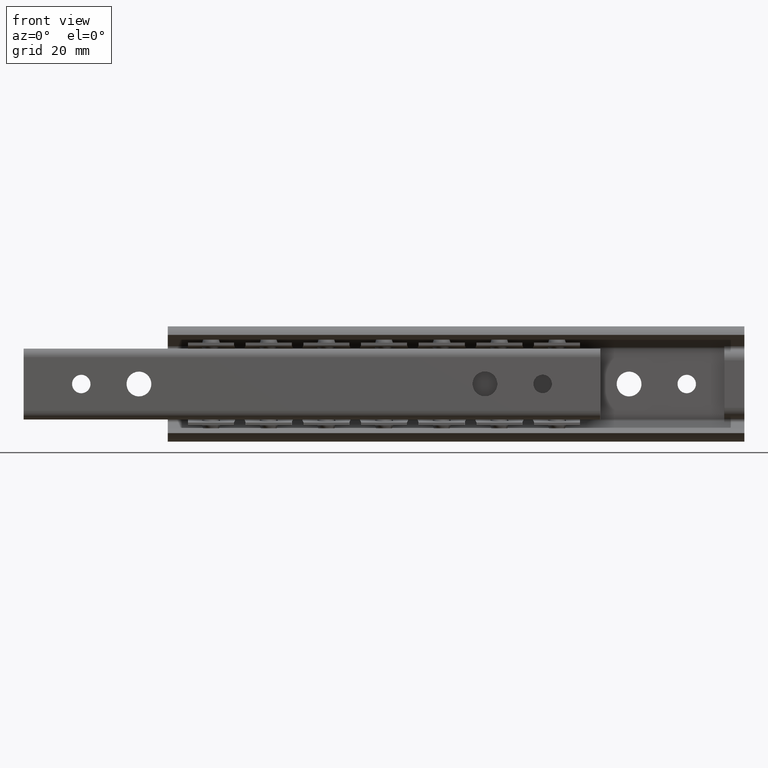
[diagram: clean part render]
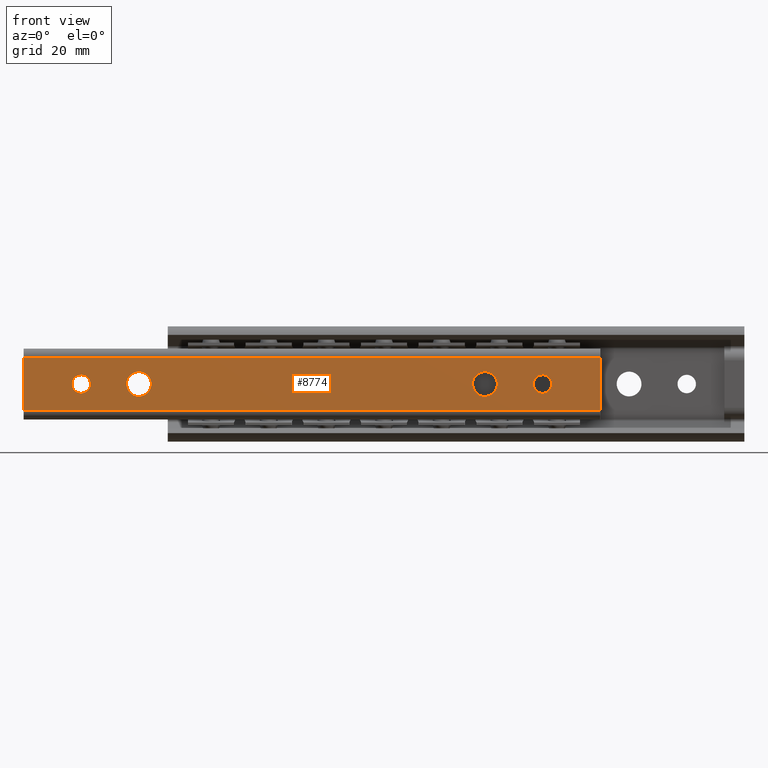
[diagram: same view with one face highlighted and labeled with its STEP entity id]
A machine part, front view. The second image highlights one B-rep face of the part: STEP entity #8774.
In plain terms, the highlighted face is a freeform B-spline surface patch.
Its self-contained STEP definition (entity closure, byte-faithful):
#7515=CARTESIAN_POINT('',(-16.588815242049389,-8.0,0.188854776565361));
#7516=VERTEX_POINT('',#7515);
#7522=CARTESIAN_POINT('',(-15.0,-8.0,-1.600000000000000));
#7523=VERTEX_POINT('',#7522);
#7524=CARTESIAN_POINT('',(-16.588815242049385,-8.000000000000002,0.188854776565361));
#7525=CARTESIAN_POINT('',(-16.599999999999998,-8.0,0.094758592569387));
#7526=CARTESIAN_POINT('',(-16.600000000000001,-8.0,0.0));
#7527=CARTESIAN_POINT('',(-16.600000000000001,-8.0,-1.600000000000000));
#7528=CARTESIAN_POINT('',(-15.0,-8.0,-1.600000000000000));
#7536=(BOUNDED_CURVE()B_SPLINE_CURVE(2,(#7524,#7525,#7526,#7527,#7528),.UNSPECIFIED.,.F.,.U.)B_SPLINE_CURVE_WITH_KNOTS((3,2,3),(0.229562473278534,0.250000000000000,0.500000000000000),.UNSPECIFIED.)CURVE()GEOMETRIC_REPRESENTATION_ITEM()RATIONAL_B_SPLINE_CURVE((0.956026753723140,0.976055948055855,1.0,0.707106781186548,1.0))REPRESENTATION_ITEM(''));
#7537=EDGE_CURVE('',#7516,#7523,#7536,.T.);
#7539=CARTESIAN_POINT('',(-13.402984322553239,-8.0,-0.097677663717326));
#7540=VERTEX_POINT('',#7539);
#7541=CARTESIAN_POINT('',(-15.0,-8.0,-1.600000000000000));
#7542=CARTESIAN_POINT('',(-13.494870293822499,-8.0,-1.600000000000001));
#7543=CARTESIAN_POINT('',(-13.402984322553237,-8.0,-0.097677663717326));
#7551=(BOUNDED_CURVE()B_SPLINE_CURVE(2,(#7541,#7542,#7543),.UNSPECIFIED.,.F.,.U.)B_SPLINE_CURVE_WITH_KNOTS((3,3),(0.500000000000000,0.739332962142234),.UNSPECIFIED.)CURVE()GEOMETRIC_REPRESENTATION_ITEM()RATIONAL_B_SPLINE_CURVE((1.0,0.719603993400012,0.976072041459451))REPRESENTATION_ITEM(''));
#7552=EDGE_CURVE('',#7523,#7540,#7551,.T.);
#7626=CARTESIAN_POINT('',(-15.0,-8.0,1.600000000000000));
#7627=VERTEX_POINT('',#7626);
#7628=CARTESIAN_POINT('',(-13.402984322553237,-8.0,-0.097677663717326));
#7629=CARTESIAN_POINT('',(-13.400000000000002,-8.0,-0.048884421740591));
#7630=CARTESIAN_POINT('',(-13.400000000000000,-8.0,0.0));
#7631=CARTESIAN_POINT('',(-13.399999999999999,-8.0,1.600000000000000));
#7632=CARTESIAN_POINT('',(-15.0,-8.0,1.600000000000000));
#7640=(BOUNDED_CURVE()B_SPLINE_CURVE(2,(#7628,#7629,#7630,#7631,#7632),.UNSPECIFIED.,.F.,.U.)B_SPLINE_CURVE_WITH_KNOTS((3,2,3),(0.739332962142233,0.750000000000000,1.0),.UNSPECIFIED.)CURVE()GEOMETRIC_REPRESENTATION_ITEM()RATIONAL_B_SPLINE_CURVE((0.976072041459449,0.987502787786534,1.0,0.707106781186548,1.0))REPRESENTATION_ITEM(''));
#7641=EDGE_CURVE('',#7540,#7627,#7640,.T.);
#7643=CARTESIAN_POINT('',(-15.0,-8.0,1.600000000000000));
#7644=CARTESIAN_POINT('',(-16.421079239514395,-8.0,1.599999999999999));
#7645=CARTESIAN_POINT('',(-16.588815242049385,-8.000000000000002,0.188854776565361));
#7653=(BOUNDED_CURVE()B_SPLINE_CURVE(2,(#7643,#7644,#7645),.UNSPECIFIED.,.F.,.U.)B_SPLINE_CURVE_WITH_KNOTS((3,3),(0.0,0.229562473278534),.UNSPECIFIED.)CURVE()GEOMETRIC_REPRESENTATION_ITEM()RATIONAL_B_SPLINE_CURVE((1.0,0.731050833130692,0.956026753723140))REPRESENTATION_ITEM(''));
#7654=EDGE_CURVE('',#7627,#7516,#7653,.T.);
#7701=CARTESIAN_POINT('',(-7.134970481671571,-8.0,0.253773604598790));
#7702=VERTEX_POINT('',#7701);
#7708=CARTESIAN_POINT('',(-5.0,-8.0,-2.150000000000000));
#7709=VERTEX_POINT('',#7708);
#7710=CARTESIAN_POINT('',(-7.134970481671572,-8.0,0.253773604598790));
#7711=CARTESIAN_POINT('',(-7.150000000000000,-8.0,0.127331857339283));
#7712=CARTESIAN_POINT('',(-7.150000000000000,-8.0,0.0));
#7713=CARTESIAN_POINT('',(-7.150000000000003,-8.0,-2.150000000000000));
#7714=CARTESIAN_POINT('',(-5.0,-8.0,-2.150000000000000));
#7722=(BOUNDED_CURVE()B_SPLINE_CURVE(2,(#7710,#7711,#7712,#7713,#7714),.UNSPECIFIED.,.F.,.U.)B_SPLINE_CURVE_WITH_KNOTS((3,2,3),(0.229562473501909,0.250000000000000,0.500000000000000),.UNSPECIFIED.)CURVE()GEOMETRIC_REPRESENTATION_ITEM()RATIONAL_B_SPLINE_CURVE((0.956026754160963,0.976055948317555,1.0,0.707106781186547,1.0))REPRESENTATION_ITEM(''));
#7723=EDGE_CURVE('',#7702,#7709,#7722,.T.);
#7725=CARTESIAN_POINT('',(-2.854010183405838,-8.0,-0.131254360210069));
#7726=VERTEX_POINT('',#7725);
#7727=CARTESIAN_POINT('',(-5.0,-8.0,-2.150000000000000));
#7728=CARTESIAN_POINT('',(-2.977481956549564,-8.0,-2.150000000000001));
#7729=CARTESIAN_POINT('',(-2.854010183405838,-8.0,-0.131254360210068));
#7737=(BOUNDED_CURVE()B_SPLINE_CURVE(2,(#7727,#7728,#7729),.UNSPECIFIED.,.F.,.U.)B_SPLINE_CURVE_WITH_KNOTS((3,3),(0.500000000000000,0.739332962208179),.UNSPECIFIED.)CURVE()GEOMETRIC_REPRESENTATION_ITEM()RATIONAL_B_SPLINE_CURVE((1.0,0.719603993322753,0.976072041600784))REPRESENTATION_ITEM(''));
#7738=EDGE_CURVE('',#7709,#7726,#7737,.T.);
#7812=CARTESIAN_POINT('',(-5.0,-8.0,2.150000000000000));
#7813=VERTEX_POINT('',#7812);
#7814=CARTESIAN_POINT('',(-2.854010183405837,-8.0,-0.131254360210068));
#7815=CARTESIAN_POINT('',(-2.850000000000000,-8.000000000000002,-0.065688441302681));
#7816=CARTESIAN_POINT('',(-2.850000000000000,-8.0,0.0));
#7817=CARTESIAN_POINT('',(-2.850000000000000,-8.0,2.150000000000000));
#7818=CARTESIAN_POINT('',(-5.0,-8.0,2.150000000000000));
#7826=(BOUNDED_CURVE()B_SPLINE_CURVE(2,(#7814,#7815,#7816,#7817,#7818),.UNSPECIFIED.,.F.,.U.)B_SPLINE_CURVE_WITH_KNOTS((3,2,3),(0.739332962208178,0.750000000000000,1.0),.UNSPECIFIED.)CURVE()GEOMETRIC_REPRESENTATION_ITEM()RATIONAL_B_SPLINE_CURVE((0.976072041600783,0.987502787863794,1.0,0.707106781186547,1.0))REPRESENTATION_ITEM(''));
#7827=EDGE_CURVE('',#7726,#7813,#7826,.T.);
#7829=CARTESIAN_POINT('',(-5.0,-8.0,2.150000000000000));
#7830=CARTESIAN_POINT('',(-6.909575230639151,-8.000000000000002,2.150000000000000));
#7831=CARTESIAN_POINT('',(-7.134970481671571,-8.0,0.253773604598790));
#7839=(BOUNDED_CURVE()B_SPLINE_CURVE(2,(#7829,#7830,#7831),.UNSPECIFIED.,.F.,.U.)B_SPLINE_CURVE_WITH_KNOTS((3,3),(0.0,0.229562473501909),.UNSPECIFIED.)CURVE()GEOMETRIC_REPRESENTATION_ITEM()RATIONAL_B_SPLINE_CURVE((1.0,0.731050832868992,0.956026754160963))REPRESENTATION_ITEM(''));
#7840=EDGE_CURVE('',#7813,#7702,#7839,.T.);
#7887=CARTESIAN_POINT('',(52.865029518328427,-8.0,0.253773604598790));
#7888=VERTEX_POINT('',#7887);
#7894=CARTESIAN_POINT('',(55.0,-8.0,-2.150000000000000));
#7895=VERTEX_POINT('',#7894);
#7896=CARTESIAN_POINT('',(52.865029518328434,-8.0,0.253773604598790));
#7897=CARTESIAN_POINT('',(52.849999999999994,-8.0,0.127331857339283));
#7898=CARTESIAN_POINT('',(52.850000000000001,-8.0,0.0));
#7899=CARTESIAN_POINT('',(52.850000000000016,-8.0,-2.150000000000000));
#7900=CARTESIAN_POINT('',(55.0,-8.0,-2.150000000000000));
#7908=(BOUNDED_CURVE()B_SPLINE_CURVE(2,(#7896,#7897,#7898,#7899,#7900),.UNSPECIFIED.,.F.,.U.)B_SPLINE_CURVE_WITH_KNOTS((3,2,3),(0.229562473501909,0.250000000000000,0.500000000000000),.UNSPECIFIED.)CURVE()GEOMETRIC_REPRESENTATION_ITEM()RATIONAL_B_SPLINE_CURVE((0.956026754160963,0.976055948317555,1.0,0.707106781186547,1.0))REPRESENTATION_ITEM(''));
#7909=EDGE_CURVE('',#7888,#7895,#7908,.T.);
#7911=CARTESIAN_POINT('',(57.145989816594152,-8.0,-0.131254360210068));
#7912=VERTEX_POINT('',#7911);
#7913=CARTESIAN_POINT('',(55.0,-8.0,-2.150000000000000));
#7914=CARTESIAN_POINT('',(57.022518043450440,-8.0,-2.150000000000001));
#7915=CARTESIAN_POINT('',(57.145989816594160,-8.0,-0.131254360210068));
#7923=(BOUNDED_CURVE()B_SPLINE_CURVE(2,(#7913,#7914,#7915),.UNSPECIFIED.,.F.,.U.)B_SPLINE_CURVE_WITH_KNOTS((3,3),(0.500000000000000,0.739332962208179),.UNSPECIFIED.)CURVE()GEOMETRIC_REPRESENTATION_ITEM()RATIONAL_B_SPLINE_CURVE((1.0,0.719603993322753,0.976072041600784))REPRESENTATION_ITEM(''));
#7924=EDGE_CURVE('',#7895,#7912,#7923,.T.);
#7998=CARTESIAN_POINT('',(55.0,-8.0,2.150000000000000));
#7999=VERTEX_POINT('',#7998);
#8000=CARTESIAN_POINT('',(57.145989816594152,-8.0,-0.131254360210068));
#8001=CARTESIAN_POINT('',(57.149999999999999,-8.0,-0.065688441302681));
#8002=CARTESIAN_POINT('',(57.149999999999999,-8.0,0.0));
#8003=CARTESIAN_POINT('',(57.149999999999999,-8.0,2.150000000000000));
#8004=CARTESIAN_POINT('',(55.0,-8.0,2.150000000000000));
#8012=(BOUNDED_CURVE()B_SPLINE_CURVE(2,(#8000,#8001,#8002,#8003,#8004),.UNSPECIFIED.,.F.,.U.)B_SPLINE_CURVE_WITH_KNOTS((3,2,3),(0.739332962208178,0.750000000000000,1.0),.UNSPECIFIED.)CURVE()GEOMETRIC_REPRESENTATION_ITEM()RATIONAL_B_SPLINE_CURVE((0.976072041600783,0.987502787863794,1.0,0.707106781186547,1.0))REPRESENTATION_ITEM(''));
#8013=EDGE_CURVE('',#7912,#7999,#8012,.T.);
#8015=CARTESIAN_POINT('',(55.0,-8.0,2.150000000000000));
#8016=CARTESIAN_POINT('',(53.090424769360865,-8.000000000000002,2.150000000000000));
#8017=CARTESIAN_POINT('',(52.865029518328434,-8.0,0.253773604598790));
#8025=(BOUNDED_CURVE()B_SPLINE_CURVE(2,(#8015,#8016,#8017),.UNSPECIFIED.,.F.,.U.)B_SPLINE_CURVE_WITH_KNOTS((3,3),(0.0,0.229562473501909),.UNSPECIFIED.)CURVE()GEOMETRIC_REPRESENTATION_ITEM()RATIONAL_B_SPLINE_CURVE((1.0,0.731050832868992,0.956026754160963))REPRESENTATION_ITEM(''));
#8026=EDGE_CURVE('',#7999,#7888,#8025,.T.);
#8073=CARTESIAN_POINT('',(63.411184757950622,-8.0,0.188854776565362));
#8074=VERTEX_POINT('',#8073);
#8080=CARTESIAN_POINT('',(65.0,-8.0,-1.600000000000000));
#8081=VERTEX_POINT('',#8080);
#8082=CARTESIAN_POINT('',(63.411184757950622,-8.0,0.188854776565362));
#8083=CARTESIAN_POINT('',(63.399999999999999,-8.0,0.094758592569387));
#8084=CARTESIAN_POINT('',(63.399999999999999,-8.0,0.0));
#8085=CARTESIAN_POINT('',(63.399999999999999,-8.0,-1.600000000000000));
#8086=CARTESIAN_POINT('',(65.0,-8.0,-1.600000000000000));
#8094=(BOUNDED_CURVE()B_SPLINE_CURVE(2,(#8082,#8083,#8084,#8085,#8086),.UNSPECIFIED.,.F.,.U.)B_SPLINE_CURVE_WITH_KNOTS((3,2,3),(0.229562473278534,0.250000000000000,0.500000000000000),.UNSPECIFIED.)CURVE()GEOMETRIC_REPRESENTATION_ITEM()RATIONAL_B_SPLINE_CURVE((0.956026753723140,0.976055948055855,1.0,0.707106781186548,1.0))REPRESENTATION_ITEM(''));
#8095=EDGE_CURVE('',#8074,#8081,#8094,.T.);
#8097=CARTESIAN_POINT('',(66.597015677446763,-8.0,-0.097677663717326));
#8098=VERTEX_POINT('',#8097);
#8099=CARTESIAN_POINT('',(65.0,-8.0,-1.600000000000000));
#8100=CARTESIAN_POINT('',(66.505129706177499,-8.0,-1.600000000000001));
#8101=CARTESIAN_POINT('',(66.597015677446763,-8.0,-0.097677663717326));
#8109=(BOUNDED_CURVE()B_SPLINE_CURVE(2,(#8099,#8100,#8101),.UNSPECIFIED.,.F.,.U.)B_SPLINE_CURVE_WITH_KNOTS((3,3),(0.500000000000000,0.739332962142234),.UNSPECIFIED.)CURVE()GEOMETRIC_REPRESENTATION_ITEM()RATIONAL_B_SPLINE_CURVE((1.0,0.719603993400012,0.976072041459451))REPRESENTATION_ITEM(''));
#8110=EDGE_CURVE('',#8081,#8098,#8109,.T.);
#8184=CARTESIAN_POINT('',(65.0,-8.0,1.600000000000000));
#8185=VERTEX_POINT('',#8184);
#8186=CARTESIAN_POINT('',(66.597015677446763,-8.0,-0.097677663717326));
#8187=CARTESIAN_POINT('',(66.600000000000023,-8.0,-0.048884421740591));
#8188=CARTESIAN_POINT('',(66.600000000000009,-8.0,0.0));
#8189=CARTESIAN_POINT('',(66.600000000000009,-8.0,1.600000000000000));
#8190=CARTESIAN_POINT('',(65.0,-8.0,1.600000000000000));
#8198=(BOUNDED_CURVE()B_SPLINE_CURVE(2,(#8186,#8187,#8188,#8189,#8190),.UNSPECIFIED.,.F.,.U.)B_SPLINE_CURVE_WITH_KNOTS((3,2,3),(0.739332962142233,0.750000000000000,1.0),.UNSPECIFIED.)CURVE()GEOMETRIC_REPRESENTATION_ITEM()RATIONAL_B_SPLINE_CURVE((0.976072041459449,0.987502787786534,1.0,0.707106781186548,1.0))REPRESENTATION_ITEM(''));
#8199=EDGE_CURVE('',#8098,#8185,#8198,.T.);
#8201=CARTESIAN_POINT('',(65.0,-8.0,1.600000000000000));
#8202=CARTESIAN_POINT('',(63.578920760485602,-8.000000000000002,1.599999999999999));
#8203=CARTESIAN_POINT('',(63.411184757950622,-8.000000000000002,0.188854776565362));
#8211=(BOUNDED_CURVE()B_SPLINE_CURVE(2,(#8201,#8202,#8203),.UNSPECIFIED.,.F.,.U.)B_SPLINE_CURVE_WITH_KNOTS((3,3),(0.0,0.229562473278534),.UNSPECIFIED.)CURVE()GEOMETRIC_REPRESENTATION_ITEM()RATIONAL_B_SPLINE_CURVE((1.0,0.731050833130692,0.956026753723140))REPRESENTATION_ITEM(''));
#8212=EDGE_CURVE('',#8185,#8074,#8211,.T.);
#8340=CARTESIAN_POINT('',(-25.0,-8.0,-4.641040000000000));
#8341=VERTEX_POINT('',#8340);
#8357=CARTESIAN_POINT('',(-25.0,-8.000000000000091,4.641039999999900));
#8358=VERTEX_POINT('',#8357);
#8359=CARTESIAN_POINT('',(-25.0,-8.0,-4.641040000000000));
#8360=CARTESIAN_POINT('',(-25.0,-8.000000000000091,4.641039999999900));
#8361=QUASI_UNIFORM_CURVE('',1,(#8359,#8360),.UNSPECIFIED.,.F.,.U.);
#8362=EDGE_CURVE('',#8341,#8358,#8361,.T.);
#8426=CARTESIAN_POINT('',(75.0,-8.0,4.641039999999910));
#8427=VERTEX_POINT('',#8426);
#8443=CARTESIAN_POINT('',(75.0,-8.000000000000091,-4.641040000000000));
#8444=VERTEX_POINT('',#8443);
#8445=CARTESIAN_POINT('',(75.0,-8.0,4.641039999999910));
#8446=CARTESIAN_POINT('',(75.0,-8.000000000000091,-4.641040000000000));
#8447=QUASI_UNIFORM_CURVE('',1,(#8445,#8446),.UNSPECIFIED.,.F.,.U.);
#8448=EDGE_CURVE('',#8427,#8444,#8447,.T.);
#8724=CARTESIAN_POINT('',(75.0,-8.000000000000091,-4.641040000000000));
#8725=CARTESIAN_POINT('',(-25.0,-8.0,-4.641040000000000));
#8726=QUASI_UNIFORM_CURVE('',1,(#8724,#8725),.UNSPECIFIED.,.F.,.U.);
#8727=EDGE_CURVE('',#8444,#8341,#8726,.T.);
#8735=CARTESIAN_POINT('',(-29.994999806180580,-8.000000000000091,-5.104679757713888));
#8736=CARTESIAN_POINT('',(-29.994999806180580,-8.000000000000091,5.104679425760749));
#8737=CARTESIAN_POINT('',(79.995002488389602,-8.000000000000091,-5.104679757713888));
#8738=CARTESIAN_POINT('',(79.995002488389602,-8.000000000000091,5.104679425760749));
#8739=B_SPLINE_SURFACE_WITH_KNOTS('',1,1,((#8735,#8737),(#8736,#8738)),.UNSPECIFIED.,.F.,.F.,.U.,(2,2),(2,2),(0.0,10.209359183474641),(0.0,109.990002294570200),.UNSPECIFIED.);
#8740=CARTESIAN_POINT('',(75.0,-8.0,4.641039999999910));
#8741=CARTESIAN_POINT('',(-25.0,-8.000000000000091,4.641039999999900));
#8742=QUASI_UNIFORM_CURVE('',1,(#8740,#8741),.UNSPECIFIED.,.F.,.U.);
#8743=EDGE_CURVE('',#8427,#8358,#8742,.T.);
#8744=ORIENTED_EDGE('',*,*,#8743,.T.);
#8745=ORIENTED_EDGE('',*,*,#8362,.F.);
#8746=ORIENTED_EDGE('',*,*,#8727,.F.);
#8747=ORIENTED_EDGE('',*,*,#8448,.F.);
#8748=EDGE_LOOP('',(#8744,#8745,#8746,#8747));
#8749=FACE_OUTER_BOUND('',#8748,.T.);
#8750=ORIENTED_EDGE('',*,*,#8110,.F.);
#8751=ORIENTED_EDGE('',*,*,#8095,.F.);
#8752=ORIENTED_EDGE('',*,*,#8212,.F.);
#8753=ORIENTED_EDGE('',*,*,#8199,.F.);
#8754=EDGE_LOOP('',(#8750,#8751,#8752,#8753));
#8755=FACE_BOUND('',#8754,.T.);
#8756=ORIENTED_EDGE('',*,*,#7924,.F.);
#8757=ORIENTED_EDGE('',*,*,#7909,.F.);
#8758=ORIENTED_EDGE('',*,*,#8026,.F.);
#8759=ORIENTED_EDGE('',*,*,#8013,.F.);
#8760=EDGE_LOOP('',(#8756,#8757,#8758,#8759));
#8761=FACE_BOUND('',#8760,.T.);
#8762=ORIENTED_EDGE('',*,*,#7738,.F.);
#8763=ORIENTED_EDGE('',*,*,#7723,.F.);
#8764=ORIENTED_EDGE('',*,*,#7840,.F.);
#8765=ORIENTED_EDGE('',*,*,#7827,.F.);
#8766=EDGE_LOOP('',(#8762,#8763,#8764,#8765));
#8767=FACE_BOUND('',#8766,.T.);
#8768=ORIENTED_EDGE('',*,*,#7552,.F.);
#8769=ORIENTED_EDGE('',*,*,#7537,.F.);
#8770=ORIENTED_EDGE('',*,*,#7654,.F.);
#8771=ORIENTED_EDGE('',*,*,#7641,.F.);
#8772=EDGE_LOOP('',(#8768,#8769,#8770,#8771));
#8773=FACE_BOUND('',#8772,.T.);
#8774=ADVANCED_FACE('',(#8749,#8755,#8761,#8767,#8773),#8739,.F.);